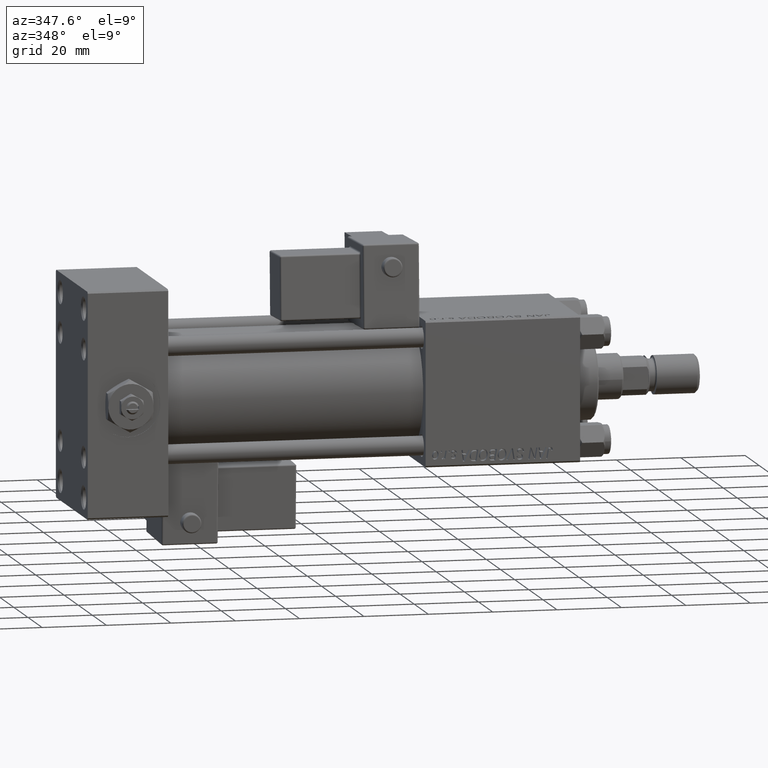
[diagram: clean part render]
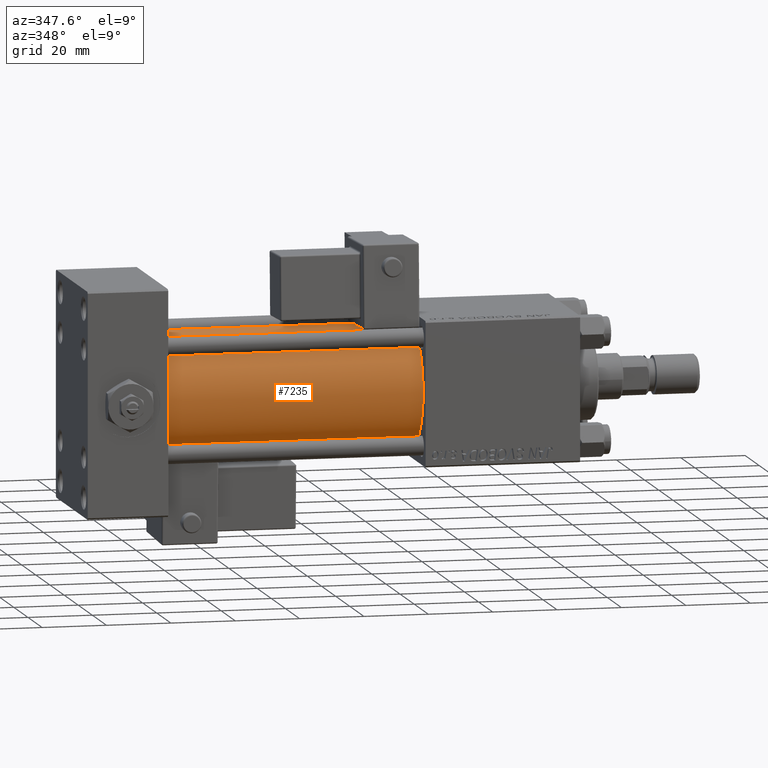
[diagram: same view with one face highlighted and labeled with its STEP entity id]
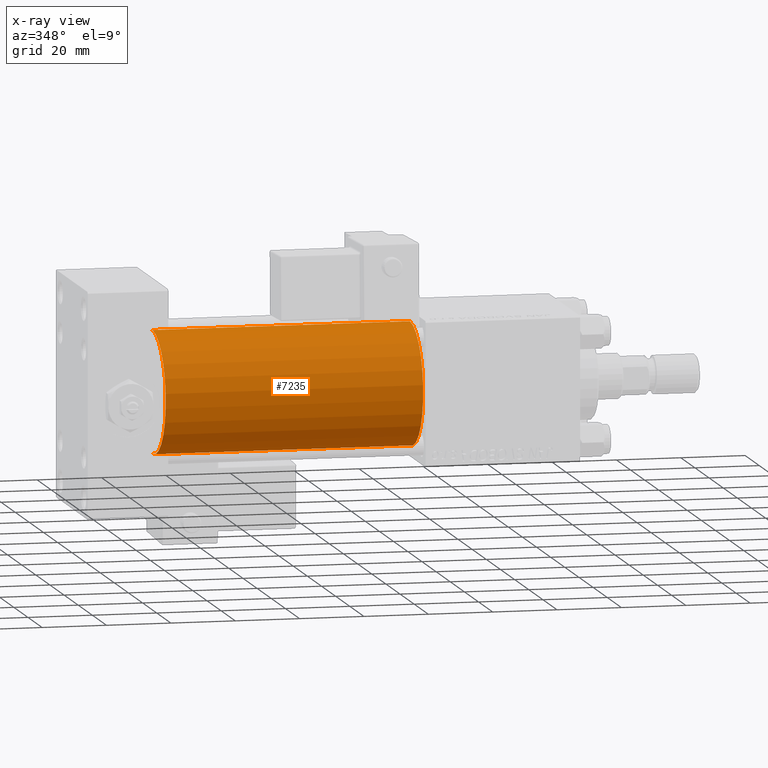
[diagram: x-ray of the same camera — body ghosted, the highlighted face saturated]
A machine part, auxiliary view. The second image highlights one B-rep face of the part: STEP entity #7235.
The next image is the same camera in x-ray: the body ghosted, the highlighted face saturated — about 0% of this face is hidden behind the body in this view.
In plain terms, the highlighted cylindrical surface (partial cylindrical patch) has radius 19 mm, axis along (-1, -0, -0).
Its self-contained STEP definition (entity closure, byte-faithful):
#298 = CARTESIAN_POINT ( 'NONE',  ( 105.0000000000000142, -2.602085213965210642E-15, 0.000000000000000000 ) ) ;
#6767 = LINE ( 'NONE', #49147, #26539 ) ;
#6974 = AXIS2_PLACEMENT_3D ( 'NONE', #298, #42686, #21201 ) ;
#7235 = ADVANCED_FACE ( 'NONE', ( #28897 ), #37159, .T. ) ;
#8128 = CARTESIAN_POINT ( 'NONE',  ( 24.99999999999999289, -2.752562955852396712E-16, -19.00000000000000000 ) ) ;
#8725 = DIRECTION ( 'NONE',  ( 1.000000000000000000, -0.000000000000000000, 0.000000000000000000 ) ) ;
#11841 = DIRECTION ( 'NONE',  ( -1.000000000000000000, -0.000000000000000000, -0.000000000000000000 ) ) ;
#13936 = DIRECTION ( 'NONE',  ( 0.000000000000000000, 0.000000000000000000, 1.000000000000000000 ) ) ;
#16653 = EDGE_CURVE ( 'NONE', #47912, #20134, #6767, .T. ) ;
#18312 = DIRECTION ( 'NONE',  ( -1.000000000000000000, -0.000000000000000000, -0.000000000000000000 ) ) ;
#18395 = DIRECTION ( 'NONE',  ( -1.000000000000000000, -0.000000000000000000, -0.000000000000000000 ) ) ;
#18523 = CIRCLE ( 'NONE', #27273, 19.00000000000000000 ) ;
#20134 = VERTEX_POINT ( 'NONE', #8128 ) ;
#21201 = DIRECTION ( 'NONE',  ( 0.000000000000000000, 0.000000000000000000, -1.000000000000000000 ) ) ;
#21494 = CARTESIAN_POINT ( 'NONE',  ( 24.99999999999999289, -2.602085213965210642E-15, 19.00000000000000000 ) ) ;
#23171 = ORIENTED_EDGE ( 'NONE', *, *, #41922, .F. ) ;
#24787 = ORIENTED_EDGE ( 'NONE', *, *, #44936, .T. ) ;
#26539 = VECTOR ( 'NONE', #18395, 1000.000000000000000 ) ;
#27273 = AXIS2_PLACEMENT_3D ( 'NONE', #51948, #8725, #13936 ) ;
#28063 = AXIS2_PLACEMENT_3D ( 'NONE', #45699, #11841, #45423 ) ;
#28897 = FACE_OUTER_BOUND ( 'NONE', #34200, .T. ) ;
#34200 = EDGE_LOOP ( 'NONE', ( #38301, #23171, #40265, #24787 ) ) ;
#34387 = VERTEX_POINT ( 'NONE', #48721 ) ;
#37159 = CYLINDRICAL_SURFACE ( 'NONE', #28063, 19.00000000000000000 ) ;
#38301 = ORIENTED_EDGE ( 'NONE', *, *, #16653, .F. ) ;
#39016 = CARTESIAN_POINT ( 'NONE',  ( 105.0000000000000142, -2.752562955852396712E-16, -19.00000000000000000 ) ) ;
#40265 = ORIENTED_EDGE ( 'NONE', *, *, #48048, .T. ) ;
#41922 = EDGE_CURVE ( 'NONE', #34387, #47912, #54442, .T. ) ;
#42686 = DIRECTION ( 'NONE',  ( 1.000000000000000000, 0.000000000000000000, 0.000000000000000000 ) ) ;
#44936 = EDGE_CURVE ( 'NONE', #45458, #20134, #18523, .T. ) ;
#44995 = VECTOR ( 'NONE', #18312, 1000.000000000000000 ) ;
#45423 = DIRECTION ( 'NONE',  ( 0.000000000000000000, 0.000000000000000000, 1.000000000000000000 ) ) ;
#45458 = VERTEX_POINT ( 'NONE', #21494 ) ;
#45699 = CARTESIAN_POINT ( 'NONE',  ( 105.0000000000000142, -2.602085213965210642E-15, 0.000000000000000000 ) ) ;
#46955 = CARTESIAN_POINT ( 'NONE',  ( 105.0000000000000142, -2.602085213965210642E-15, 19.00000000000000000 ) ) ;
#47784 = LINE ( 'NONE', #46955, #44995 ) ;
#47912 = VERTEX_POINT ( 'NONE', #39016 ) ;
#48048 = EDGE_CURVE ( 'NONE', #34387, #45458, #47784, .T. ) ;
#48721 = CARTESIAN_POINT ( 'NONE',  ( 105.0000000000000142, -2.602085213965210642E-15, 19.00000000000000000 ) ) ;
#49147 = CARTESIAN_POINT ( 'NONE',  ( 105.0000000000000142, -2.752562955852396712E-16, -19.00000000000000000 ) ) ;
#51948 = CARTESIAN_POINT ( 'NONE',  ( 24.99999999999999289, -2.602085213965210642E-15, 0.000000000000000000 ) ) ;
#54442 = CIRCLE ( 'NONE', #6974, 19.00000000000000000 ) ;